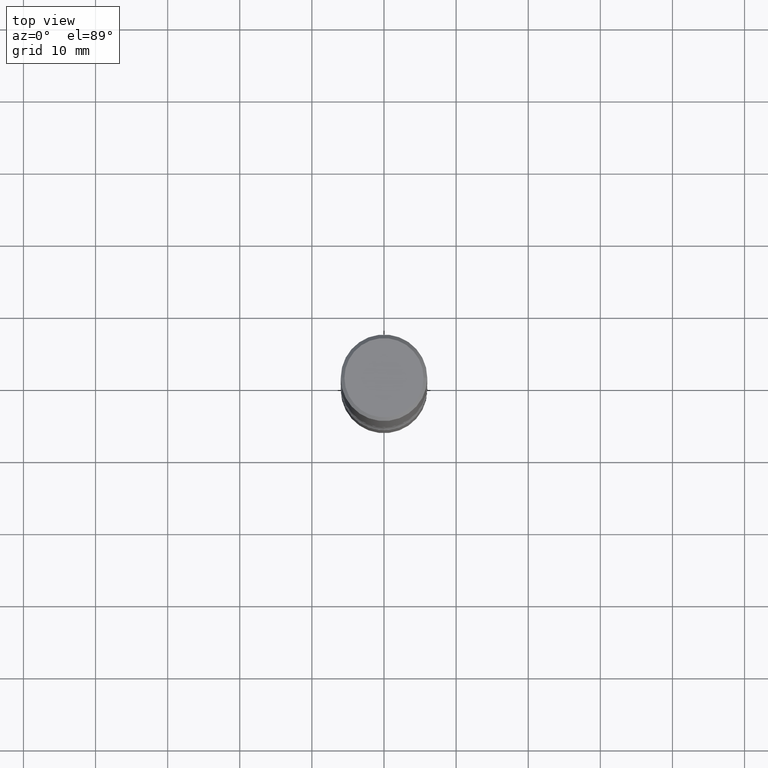
[diagram: clean part render]
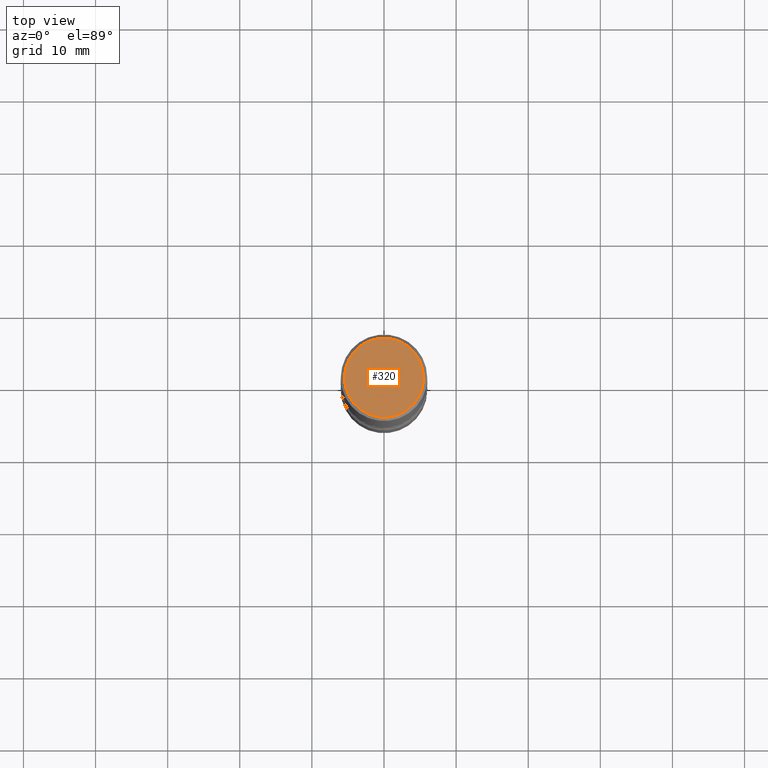
[diagram: same view with one face highlighted and labeled with its STEP entity id]
A machine part, top view. The second image highlights one B-rep face of the part: STEP entity #320.
In plain terms, the highlighted planar face has unit normal (0, -0, -1).
Its self-contained STEP definition (entity closure, byte-faithful):
#6 = VERTEX_POINT ( 'NONE', #87 ) ;
#16 = AXIS2_PLACEMENT_3D ( 'NONE', #36, #122, #550 ) ;
#28 = CARTESIAN_POINT ( 'NONE',  ( 1.509716530915769534E-15, 0.2161999999999998368, -7.527240092128373149E-16 ) ) ;
#36 = CARTESIAN_POINT ( 'NONE',  ( -1.043851414335219820E-46, 1.490343170380447200E-32, 4.268512490100411279E-18 ) ) ;
#66 = AXIS2_PLACEMENT_3D ( 'NONE', #28, #492, #494 ) ;
#87 = CARTESIAN_POINT ( 'NONE',  ( 0.2161999999999998368, -1.586759460484351002E-15, 4.268512490111238857E-18 ) ) ;
#95 = CIRCLE ( 'NONE', #255, 0.2161999999999998368 ) ;
#122 = DIRECTION ( 'NONE',  ( -2.445468806185136597E-29, 3.491481338843145583E-15, 1.000000000000000000 ) ) ;
#148 = FACE_OUTER_BOUND ( 'NONE', #235, .T. ) ;
#167 = DIRECTION ( 'NONE',  ( 1.000000000000000000, -6.982962677686266711E-15, 4.876217060660159599E-29 ) ) ;
#202 = EDGE_CURVE ( 'NONE', #401, #6, #95, .T. ) ;
#235 = EDGE_LOOP ( 'NONE', ( #350, #321 ) ) ;
#240 = CIRCLE ( 'NONE', #16, 0.2161999999999998368 ) ;
#244 = CARTESIAN_POINT ( 'NONE',  ( -0.2161999999999998368, 1.544631344304201183E-15, 4.268512490089730842E-18 ) ) ;
#247 = CARTESIAN_POINT ( 'NONE',  ( -1.043851414335219820E-46, 1.490343170380447200E-32, 4.268512490100411279E-18 ) ) ;
#255 = AXIS2_PLACEMENT_3D ( 'NONE', #247, #297, #167 ) ;
#297 = DIRECTION ( 'NONE',  ( -2.445468806185136597E-29, 3.491481338843145583E-15, 1.000000000000000000 ) ) ;
#317 = PLANE ( 'NONE',  #66 ) ;
#320 = ADVANCED_FACE ( 'NONE', ( #148 ), #317, .F. ) ;
#321 = ORIENTED_EDGE ( 'NONE', *, *, #447, .T. ) ;
#350 = ORIENTED_EDGE ( 'NONE', *, *, #202, .T. ) ;
#401 = VERTEX_POINT ( 'NONE', #244 ) ;
#447 = EDGE_CURVE ( 'NONE', #6, #401, #240, .T. ) ;
#492 = DIRECTION ( 'NONE',  ( 2.438088387897960049E-29, -3.491481338843145188E-15, -1.000000000000000000 ) ) ;
#494 = DIRECTION ( 'NONE',  ( -1.000000000000000000, 6.982962677686265922E-15, -4.876176775795935793E-29 ) ) ;
#550 = DIRECTION ( 'NONE',  ( 1.000000000000000000, -6.982962677686266711E-15, 4.876217060660159599E-29 ) ) ;